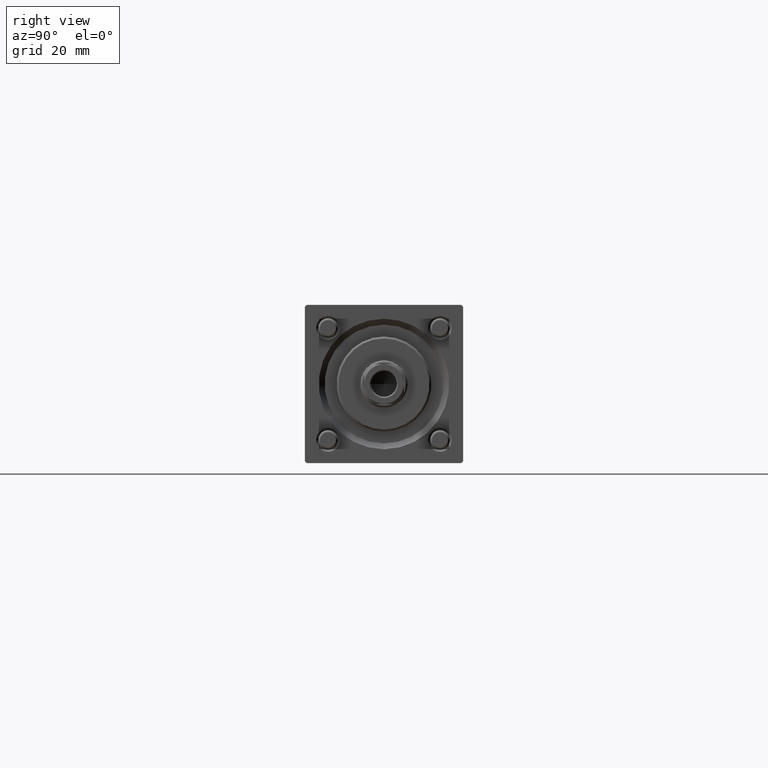
[diagram: clean part render]
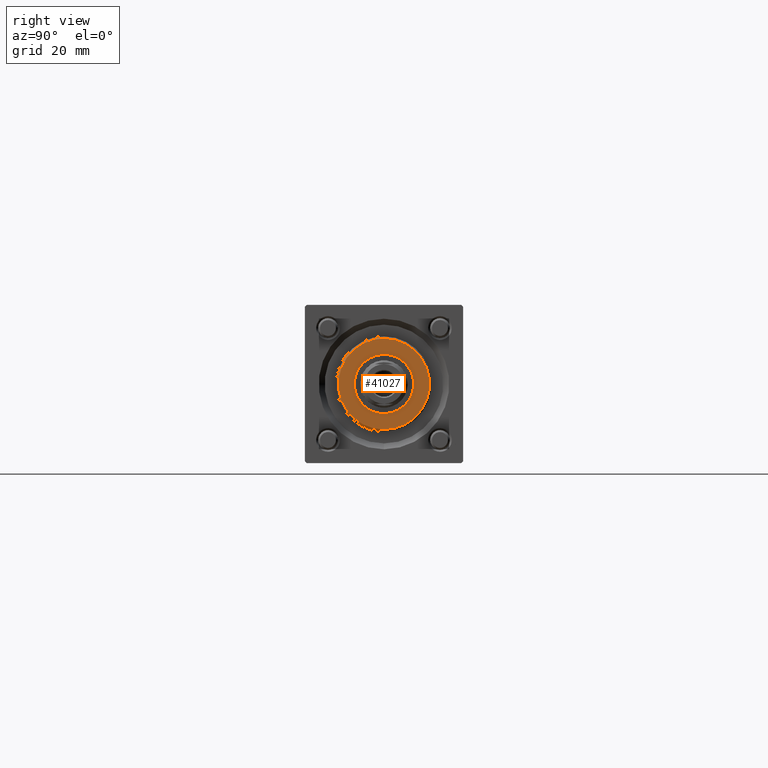
[diagram: same view with one face highlighted and labeled with its STEP entity id]
A machine part, right view. The second image highlights one B-rep face of the part: STEP entity #41027.
In plain terms, the highlighted planar face has unit normal (1, 0, 0).
Its self-contained STEP definition (entity closure, byte-faithful):
#1614 = DIRECTION ( 'NONE',  ( 0.000000000000000000, 0.000000000000000000, 1.000000000000000000 ) ) ;
#2737 = DIRECTION ( 'NONE',  ( 1.000000000000000000, 0.000000000000000000, 0.000000000000000000 ) ) ;
#2899 = ORIENTED_EDGE ( 'NONE', *, *, #44218, .T. ) ;
#4305 = AXIS2_PLACEMENT_3D ( 'NONE', #28814, #26168, #2737 ) ;
#7278 = FACE_BOUND ( 'NONE', #50850, .T. ) ;
#7849 = DIRECTION ( 'NONE',  ( 0.000000000000000000, 0.000000000000000000, 1.000000000000000000 ) ) ;
#8819 = EDGE_CURVE ( 'NONE', #13455, #24693, #36876, .T. ) ;
#9009 = CARTESIAN_POINT ( 'NONE',  ( 0.000000000000000000, 0.000000000000000000, 35.70000000000000284 ) ) ;
#12232 = CARTESIAN_POINT ( 'NONE',  ( 11.49999999999999645, 1.438959988998139963E-15, 35.70000000000000284 ) ) ;
#13455 = VERTEX_POINT ( 'NONE', #12232 ) ;
#17372 = ORIENTED_EDGE ( 'NONE', *, *, #48676, .F. ) ;
#20055 = VERTEX_POINT ( 'NONE', #39604 ) ;
#20069 = DIRECTION ( 'NONE',  ( 1.000000000000000000, 0.000000000000000000, 0.000000000000000000 ) ) ;
#21540 = ORIENTED_EDGE ( 'NONE', *, *, #8819, .T. ) ;
#22663 = AXIS2_PLACEMENT_3D ( 'NONE', #40899, #1614, #23687 ) ;
#23687 = DIRECTION ( 'NONE',  ( 1.000000000000000000, 0.000000000000000000, 0.000000000000000000 ) ) ;
#24693 = VERTEX_POINT ( 'NONE', #41566 ) ;
#24765 = CARTESIAN_POINT ( 'NONE',  ( 0.000000000000000000, 0.000000000000000000, 35.70000000000000284 ) ) ;
#26168 = DIRECTION ( 'NONE',  ( 0.000000000000000000, 0.000000000000000000, 1.000000000000000000 ) ) ;
#26774 = DIRECTION ( 'NONE',  ( 1.000000000000000000, 0.000000000000000000, 0.000000000000000000 ) ) ;
#28688 = VERTEX_POINT ( 'NONE', #55875 ) ;
#28792 = EDGE_CURVE ( 'NONE', #20055, #28688, #37301, .T. ) ;
#28814 = CARTESIAN_POINT ( 'NONE',  ( 0.000000000000000000, 0.000000000000000000, 35.70000000000000284 ) ) ;
#29001 = CIRCLE ( 'NONE', #4305, 7.500000000000000888 ) ;
#29640 = FACE_OUTER_BOUND ( 'NONE', #48681, .T. ) ;
#35645 = ORIENTED_EDGE ( 'NONE', *, *, #28792, .F. ) ;
#36876 = CIRCLE ( 'NONE', #51543, 11.49999999999999645 ) ;
#37301 = CIRCLE ( 'NONE', #22663, 7.500000000000000888 ) ;
#39538 = AXIS2_PLACEMENT_3D ( 'NONE', #24765, #7849, #51731 ) ;
#39604 = CARTESIAN_POINT ( 'NONE',  ( 7.500000000000000888, 0.000000000000000000, 35.70000000000000284 ) ) ;
#39881 = CIRCLE ( 'NONE', #46279, 11.49999999999999645 ) ;
#40899 = CARTESIAN_POINT ( 'NONE',  ( 0.000000000000000000, 0.000000000000000000, 35.70000000000000284 ) ) ;
#41027 = ADVANCED_FACE ( 'NONE', ( #7278, #29640 ), #55757, .T. ) ;
#41566 = CARTESIAN_POINT ( 'NONE',  ( -11.49999999999999645, 0.000000000000000000, 35.70000000000000284 ) ) ;
#42714 = CARTESIAN_POINT ( 'NONE',  ( 0.000000000000000000, 0.000000000000000000, 35.70000000000000284 ) ) ;
#44218 = EDGE_CURVE ( 'NONE', #24693, #13455, #39881, .T. ) ;
#44259 = DIRECTION ( 'NONE',  ( 0.000000000000000000, 0.000000000000000000, 1.000000000000000000 ) ) ;
#46279 = AXIS2_PLACEMENT_3D ( 'NONE', #42714, #54787, #20069 ) ;
#48676 = EDGE_CURVE ( 'NONE', #28688, #20055, #29001, .T. ) ;
#48681 = EDGE_LOOP ( 'NONE', ( #2899, #21540 ) ) ;
#50850 = EDGE_LOOP ( 'NONE', ( #35645, #17372 ) ) ;
#51543 = AXIS2_PLACEMENT_3D ( 'NONE', #9009, #44259, #26774 ) ;
#51731 = DIRECTION ( 'NONE',  ( 1.000000000000000000, 0.000000000000000000, -0.000000000000000000 ) ) ;
#54787 = DIRECTION ( 'NONE',  ( 0.000000000000000000, 0.000000000000000000, 1.000000000000000000 ) ) ;
#55757 = PLANE ( 'NONE',  #39538 ) ;
#55875 = CARTESIAN_POINT ( 'NONE',  ( -7.500000000000000888, 9.184850993605149917E-16, 35.70000000000000284 ) ) ;